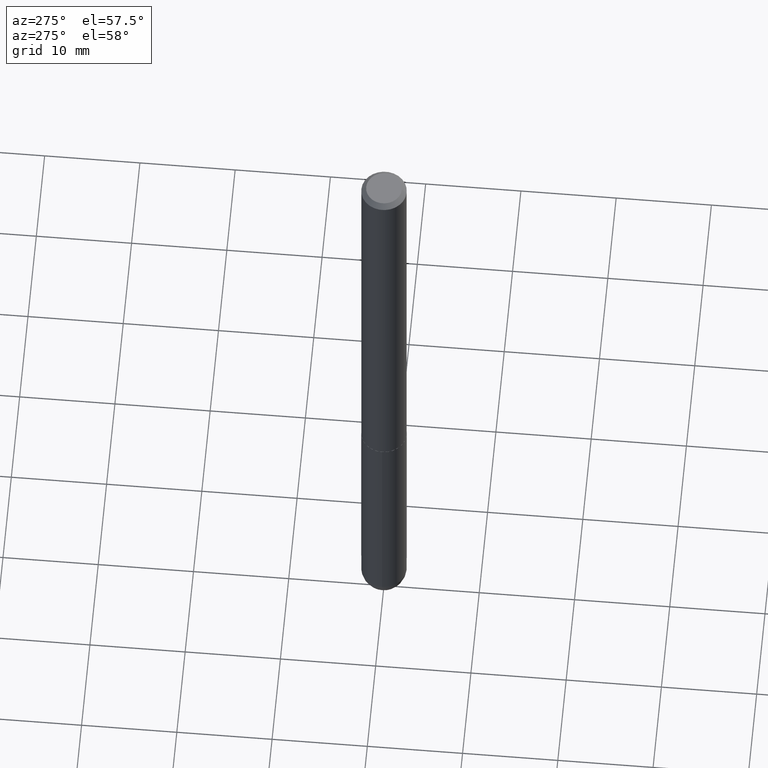
[diagram: clean part render]
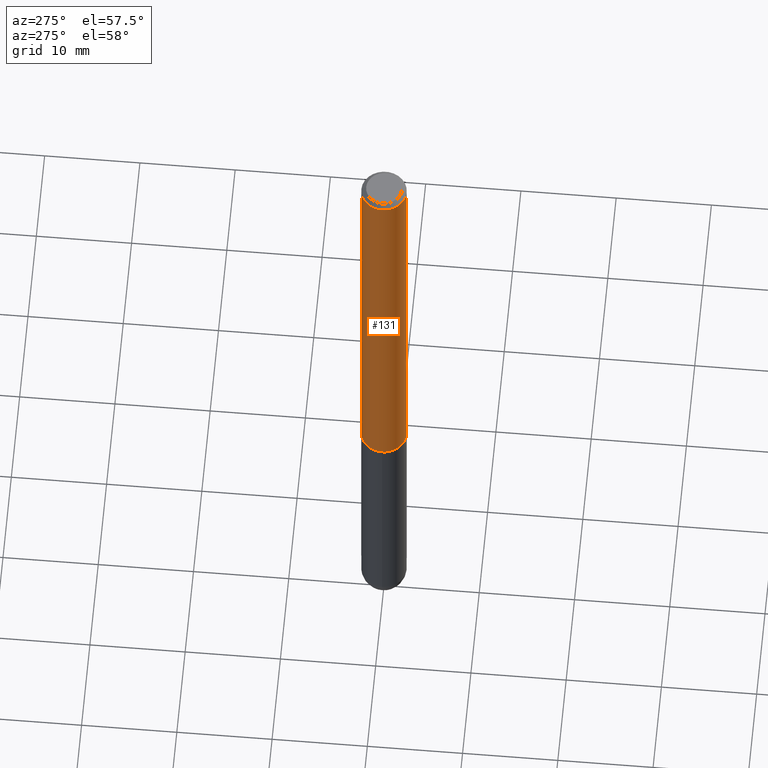
[diagram: same view with one face highlighted and labeled with its STEP entity id]
A machine part, auxiliary view. The second image highlights one B-rep face of the part: STEP entity #131.
In plain terms, the highlighted cylindrical surface (edge-blend (fillet) strip) has radius 2.3813 mm, axis along (-0, 0, 1).
Its self-contained STEP definition (entity closure, byte-faithful):
#10 = AXIS2_PLACEMENT_3D ( 'NONE', #368, #96, #164 ) ;
#23 = EDGE_CURVE ( 'NONE', #76, #208, #127, .T. ) ;
#40 = ORIENTED_EDGE ( 'NONE', *, *, #362, .F. ) ;
#62 = CARTESIAN_POINT ( 'NONE',  ( 4.582815290947142665E-29, -6.543026365248299499E-15, -1.874000000000000110 ) ) ;
#65 = CARTESIAN_POINT ( 'NONE',  ( 6.546527510330881944E-16, 0.09374999999999997224, -0.02000000000000034736 ) ) ;
#71 = AXIS2_PLACEMENT_3D ( 'NONE', #371, #149, #186 ) ;
#76 = VERTEX_POINT ( 'NONE', #65 ) ;
#96 = DIRECTION ( 'NONE',  ( -2.445472407122275024E-29, 3.491476182096210881E-15, 1.000000000000000000 ) ) ;
#99 = CYLINDRICAL_SURFACE ( 'NONE', #10, 0.09375000000000013878 ) ;
#102 = DIRECTION ( 'NONE',  ( -2.445472407122274744E-29, 3.491476182096211275E-15, 1.000000000000000000 ) ) ;
#127 = CIRCLE ( 'NONE', #71, 0.09375000000000004163 ) ;
#130 = CARTESIAN_POINT ( 'NONE',  ( -6.431716872910807882E-16, -0.09375000000000011102, -0.01999999999999968817 ) ) ;
#131 = ADVANCED_FACE ( 'NONE', ( #399 ), #99, .T. ) ;
#139 = ORIENTED_EDGE ( 'NONE', *, *, #23, .F. ) ;
#149 = DIRECTION ( 'NONE',  ( -2.445472407122275024E-29, 3.491476182096210881E-15, 1.000000000000000000 ) ) ;
#159 = CIRCLE ( 'NONE', #312, 0.09375000000000024980 ) ;
#164 = DIRECTION ( 'NONE',  ( -6.982962677686266711E-15, -1.000000000000000000, 3.491476182096210486E-15 ) ) ;
#174 = EDGE_CURVE ( 'NONE', #229, #374, #159, .T. ) ;
#184 = VECTOR ( 'NONE', #314, 39.37007874015748143 ) ;
#186 = DIRECTION ( 'NONE',  ( -6.982962677686266711E-15, -1.000000000000000000, 3.505871591869136121E-15 ) ) ;
#195 = DIRECTION ( 'NONE',  ( -6.982962677686265133E-15, -1.000000000000000000, 2.913971193241872878E-15 ) ) ;
#208 = VERTEX_POINT ( 'NONE', #130 ) ;
#214 = CARTESIAN_POINT ( 'NONE',  ( 6.661338147750948117E-16, 0.09375000000000013878, -3.273258920715202261E-16 ) ) ;
#215 = VECTOR ( 'NONE', #102, 39.37007874015748143 ) ;
#229 = VERTEX_POINT ( 'NONE', #304 ) ;
#271 = ORIENTED_EDGE ( 'NONE', *, *, #174, .T. ) ;
#272 = CARTESIAN_POINT ( 'NONE',  ( -6.546527510330432293E-16, -0.09375000000000678624, -1.873999999999999666 ) ) ;
#301 = CARTESIAN_POINT ( 'NONE',  ( -6.546527510330884902E-16, -0.09375000000000013878, 3.273258920715202261E-16 ) ) ;
#304 = CARTESIAN_POINT ( 'NONE',  ( 6.661338147751182803E-16, 0.09374999999999368561, -1.874000000000000332 ) ) ;
#312 = AXIS2_PLACEMENT_3D ( 'NONE', #62, #360, #195 ) ;
#314 = DIRECTION ( 'NONE',  ( -2.445472407122274744E-29, 3.491476182096211275E-15, 1.000000000000000000 ) ) ;
#315 = EDGE_CURVE ( 'NONE', #374, #208, #336, .T. ) ;
#331 = EDGE_LOOP ( 'NONE', ( #40, #271, #378, #139 ) ) ;
#336 = LINE ( 'NONE', #301, #215 ) ;
#339 = LINE ( 'NONE', #214, #184 ) ;
#360 = DIRECTION ( 'NONE',  ( -2.445472407122275024E-29, 3.491476182096210881E-15, 1.000000000000000000 ) ) ;
#362 = EDGE_CURVE ( 'NONE', #229, #76, #339, .T. ) ;
#368 = CARTESIAN_POINT ( 'NONE',  ( 0.000000000000000000, 0.000000000000000000, 0.000000000000000000 ) ) ;
#371 = CARTESIAN_POINT ( 'NONE',  ( 4.890944814244553657E-31, -6.982952364192427333E-17, -0.02000000000000001776 ) ) ;
#374 = VERTEX_POINT ( 'NONE', #272 ) ;
#378 = ORIENTED_EDGE ( 'NONE', *, *, #315, .T. ) ;
#399 = FACE_OUTER_BOUND ( 'NONE', #331, .T. ) ;